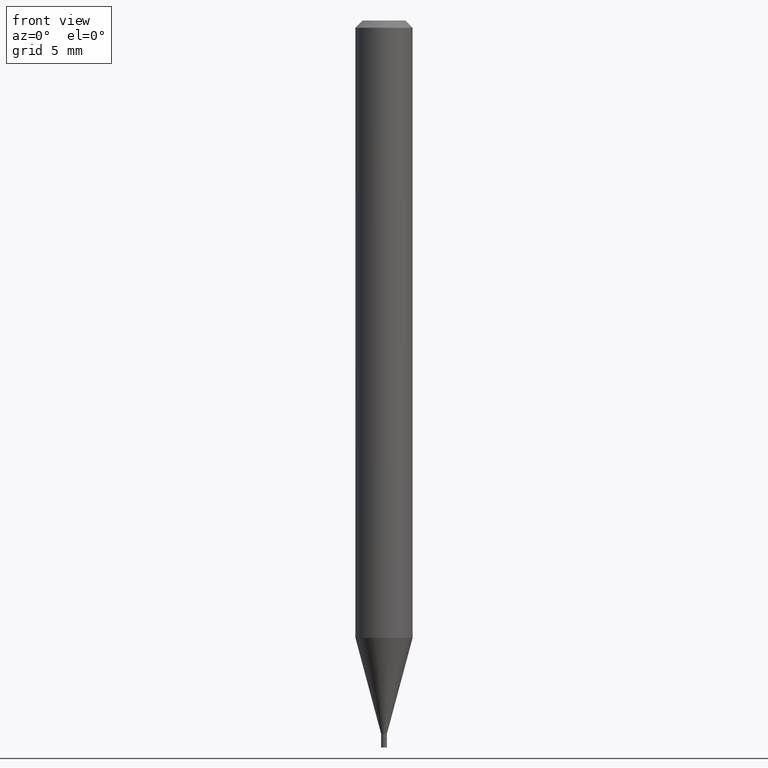
[diagram: clean part render]
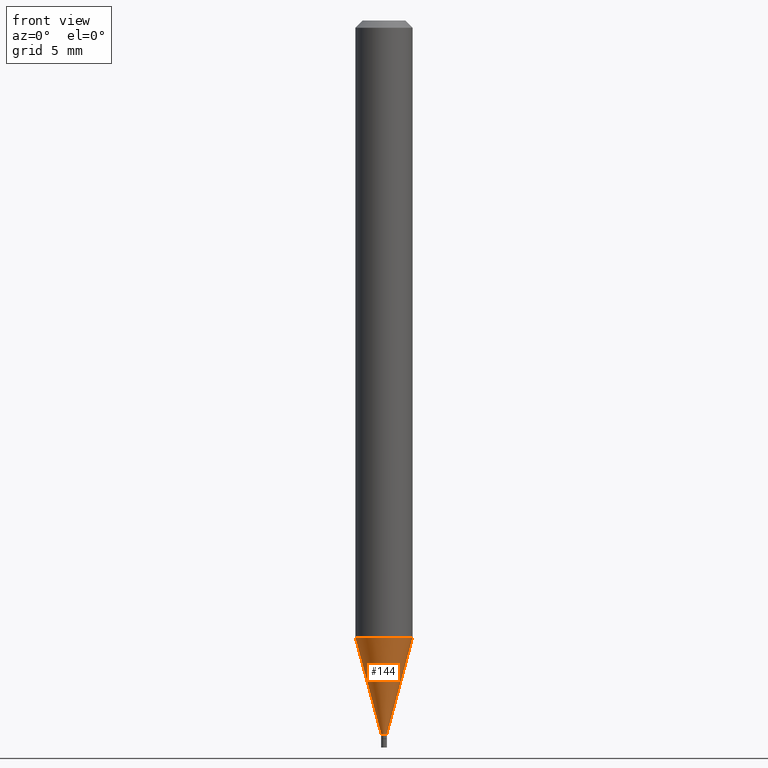
[diagram: same view with one face highlighted and labeled with its STEP entity id]
A machine part, front view. The second image highlights one B-rep face of the part: STEP entity #144.
In plain terms, the highlighted conical surface has half-angle 15 deg.
Its self-contained STEP definition (entity closure, byte-faithful):
#17 = CIRCLE ( 'NONE', #238, 0.005899999999999920065 ) ;
#21 = VERTEX_POINT ( 'NONE', #438 ) ;
#24 = ORIENTED_EDGE ( 'NONE', *, *, #305, .F. ) ;
#28 = DIRECTION ( 'NONE',  ( -2.445468806185136597E-29, 3.491481338843145583E-15, 1.000000000000000000 ) ) ;
#45 = CARTESIAN_POINT ( 'NONE',  ( 3.599730082704520905E-29, -5.139460530777110821E-15, -1.471999999999999975 ) ) ;
#54 = EDGE_CURVE ( 'NONE', #175, #21, #165, .T. ) ;
#55 = EDGE_CURVE ( 'NONE', #108, #21, #270, .T. ) ;
#67 = CARTESIAN_POINT ( 'NONE',  ( -0.005899999999999920065, -4.562429276026358128E-15, -1.471999999999999975 ) ) ;
#108 = VERTEX_POINT ( 'NONE', #295 ) ;
#128 = DIRECTION ( 'NONE',  ( 0.2588190451025215721, 1.565188264969619995E-15, 0.9659258262890679791 ) ) ;
#133 = DIRECTION ( 'NONE',  ( 1.000000000000000000, -6.982962677686273021E-15, 0.000000000000000000 ) ) ;
#140 = VECTOR ( 'NONE', #128, 39.37007874015748143 ) ;
#144 = ADVANCED_FACE ( 'NONE', ( #234 ), #372, .T. ) ;
#154 = VECTOR ( 'NONE', #357, 39.37007874015748143 ) ;
#165 = CIRCLE ( 'NONE', #195, 0.05904999999999999832 ) ;
#174 = CARTESIAN_POINT ( 'NONE',  ( -0.05904999999999999138, -4.027320042685452251E-15, -1.273641499577714553 ) ) ;
#175 = VERTEX_POINT ( 'NONE', #174 ) ;
#192 = CARTESIAN_POINT ( 'NONE',  ( 3.599730082704520905E-29, -5.139460530777110821E-15, -1.471999999999999975 ) ) ;
#195 = AXIS2_PLACEMENT_3D ( 'NONE', #448, #313, #133 ) ;
#226 = LINE ( 'NONE', #321, #154 ) ;
#234 = FACE_OUTER_BOUND ( 'NONE', #282, .T. ) ;
#238 = AXIS2_PLACEMENT_3D ( 'NONE', #192, #28, #255 ) ;
#239 = VERTEX_POINT ( 'NONE', #67 ) ;
#255 = DIRECTION ( 'NONE',  ( 1.000000000000000000, -6.982962677686312464E-15, 0.000000000000000000 ) ) ;
#269 = DIRECTION ( 'NONE',  ( -2.445468806185136597E-29, 3.491481338843145583E-15, 1.000000000000000000 ) ) ;
#270 = LINE ( 'NONE', #449, #140 ) ;
#282 = EDGE_LOOP ( 'NONE', ( #24, #310, #285, #332 ) ) ;
#285 = ORIENTED_EDGE ( 'NONE', *, *, #55, .T. ) ;
#295 = CARTESIAN_POINT ( 'NONE',  ( 0.005899999999999920065, -5.180660010575459883E-15, -1.471999999999999975 ) ) ;
#305 = EDGE_CURVE ( 'NONE', #239, #175, #226, .T. ) ;
#310 = ORIENTED_EDGE ( 'NONE', *, *, #445, .T. ) ;
#313 = DIRECTION ( 'NONE',  ( -2.445468806185136597E-29, 3.491481338843145583E-15, 1.000000000000000000 ) ) ;
#321 = CARTESIAN_POINT ( 'NONE',  ( -0.005899999999999920065, -5.097538509367265583E-15, -1.471999999999999975 ) ) ;
#332 = ORIENTED_EDGE ( 'NONE', *, *, #54, .F. ) ;
#357 = DIRECTION ( 'NONE',  ( -0.2588190451025215721, 5.211531920934551831E-15, 0.9659258262890679791 ) ) ;
#372 = CONICAL_SURFACE ( 'NONE', #431, 0.005899999999999920065, 0.2617993877991502960 ) ;
#431 = AXIS2_PLACEMENT_3D ( 'NONE', #45, #269, #456 ) ;
#438 = CARTESIAN_POINT ( 'NONE',  ( 0.05904999999999999138, -4.859239474269165875E-15, -1.273641499577714553 ) ) ;
#445 = EDGE_CURVE ( 'NONE', #239, #108, #17, .T. ) ;
#448 = CARTESIAN_POINT ( 'NONE',  ( 3.114650557480160818E-29, -4.446895528151790166E-15, -1.273641499577714553 ) ) ;
#449 = CARTESIAN_POINT ( 'NONE',  ( 0.005899999999999920065, -5.180660010575459883E-15, -1.471999999999999975 ) ) ;
#456 = DIRECTION ( 'NONE',  ( 1.000000000000000000, -6.982962677686312464E-15, 0.000000000000000000 ) ) ;